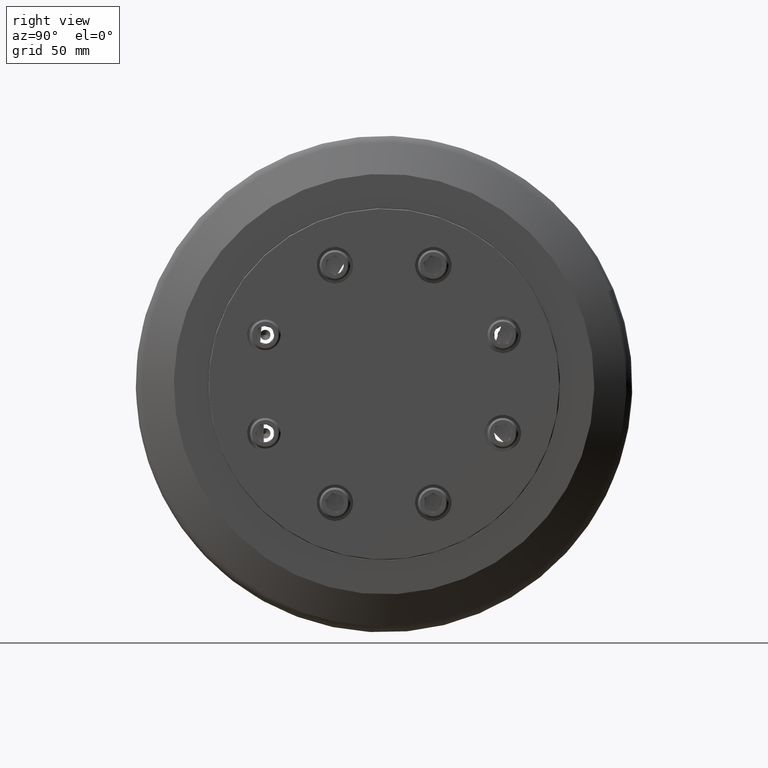
[diagram: clean part render]
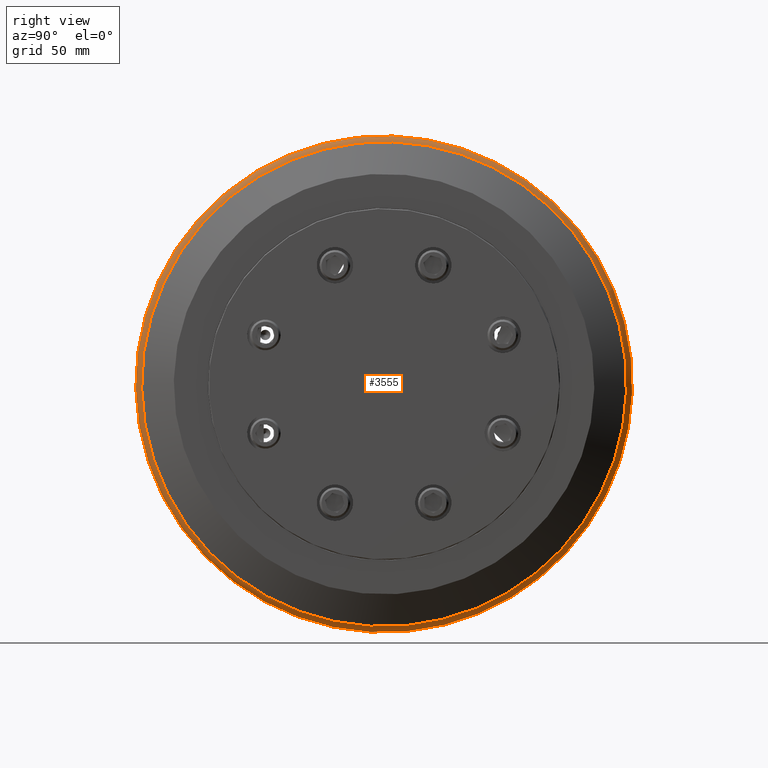
[diagram: same view with one face highlighted and labeled with its STEP entity id]
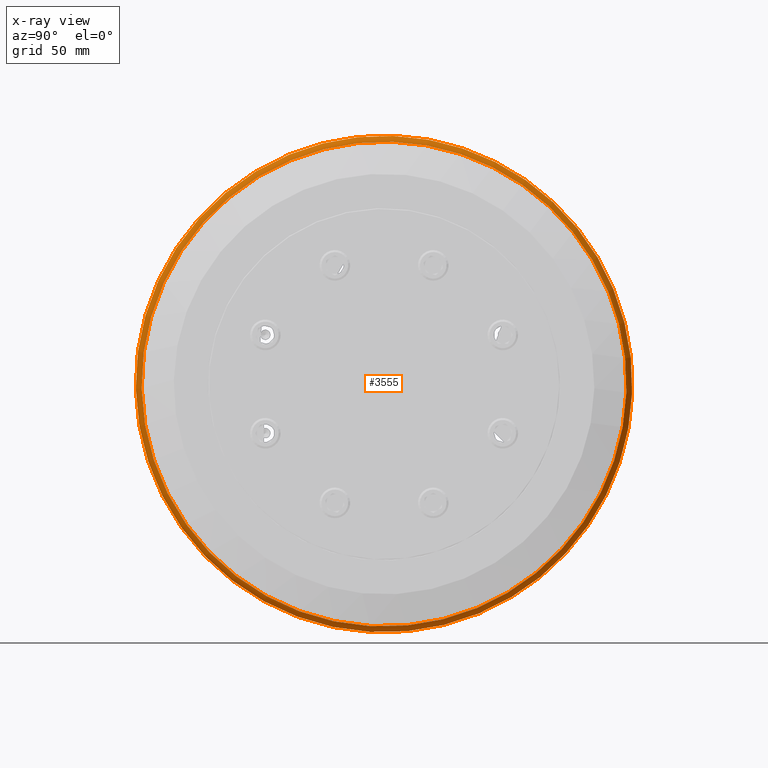
[diagram: x-ray of the same camera — body ghosted, the highlighted face saturated]
A machine part, right view. The second image highlights one B-rep face of the part: STEP entity #3555.
The next image is the same camera in x-ray: the body ghosted, the highlighted face saturated — about 0% of this face is hidden behind the body in this view.
In plain terms, the highlighted toroidal blend (fillet) surface has major radius 162 mm and minor (blend) radius 8 mm.
Its self-contained STEP definition (entity closure, byte-faithful):
#57=TOROIDAL_SURFACE('',#3875,162.,8.);
#208=CIRCLE('',#3876,166.);
#209=CIRCLE('',#3877,166.);
#210=CIRCLE('',#3878,8.);
#211=CIRCLE('',#3879,170.);
#212=CIRCLE('',#3880,170.);
#213=CIRCLE('',#3881,170.);
#214=CIRCLE('',#3882,166.);
#488=FACE_OUTER_BOUND('',#693,.T.);
#693=EDGE_LOOP('',(#2655,#2656,#2657,#2658,#2659,#2660,#2661,#2662));
#1458=VERTEX_POINT('',#5823);
#1459=VERTEX_POINT('',#5824);
#1460=VERTEX_POINT('',#5826);
#1461=VERTEX_POINT('',#5828);
#1462=VERTEX_POINT('',#5830);
#1463=VERTEX_POINT('',#5832);
#1903=EDGE_CURVE('',#1458,#1459,#208,.T.);
#1904=EDGE_CURVE('',#1459,#1460,#209,.T.);
#1905=EDGE_CURVE('',#1460,#1461,#210,.T.);
#1906=EDGE_CURVE('',#1461,#1462,#211,.T.);
#1907=EDGE_CURVE('',#1462,#1463,#212,.T.);
#1908=EDGE_CURVE('',#1463,#1461,#213,.T.);
#1909=EDGE_CURVE('',#1460,#1458,#214,.T.);
#2655=ORIENTED_EDGE('',*,*,#1903,.T.);
#2656=ORIENTED_EDGE('',*,*,#1904,.T.);
#2657=ORIENTED_EDGE('',*,*,#1905,.T.);
#2658=ORIENTED_EDGE('',*,*,#1906,.T.);
#2659=ORIENTED_EDGE('',*,*,#1907,.T.);
#2660=ORIENTED_EDGE('',*,*,#1908,.T.);
#2661=ORIENTED_EDGE('',*,*,#1905,.F.);
#2662=ORIENTED_EDGE('',*,*,#1909,.T.);
#3555=ADVANCED_FACE('',(#488),#57,.T.);
#3875=AXIS2_PLACEMENT_3D('',#5822,#4593,#4594);
#3876=AXIS2_PLACEMENT_3D('',#5825,#4595,#4596);
#3877=AXIS2_PLACEMENT_3D('',#5827,#4597,#4598);
#3878=AXIS2_PLACEMENT_3D('',#5829,#4599,#4600);
#3879=AXIS2_PLACEMENT_3D('',#5831,#4601,#4602);
#3880=AXIS2_PLACEMENT_3D('',#5833,#4603,#4604);
#3881=AXIS2_PLACEMENT_3D('',#5834,#4605,#4606);
#3882=AXIS2_PLACEMENT_3D('',#5835,#4607,#4608);
#4593=DIRECTION('center_axis',(1.,2.13376427274458E-16,1.38050658413677E-30));
#4594=DIRECTION('ref_axis',(1.97227854962822E-16,-0.923879532511287,-0.382683432365089));
#4595=DIRECTION('center_axis',(-1.,-1.81734031667709E-16,-7.63915006197908E-17));
#4596=DIRECTION('ref_axis',(-1.02994086430374E-18,-0.382683432365089,0.923879532511287));
#4597=DIRECTION('center_axis',(-1.,-1.81734031667709E-16,-7.63915006197908E-17));
#4598=DIRECTION('ref_axis',(-1.02994086430374E-18,-0.382683432365089,0.923879532511287));
#4599=DIRECTION('center_axis',(8.16556235751882E-17,-0.382683432365089,
0.923879532511287));
#4600=DIRECTION('ref_axis',(-1.97554391146535E-16,0.923879532511287,0.382683432365089));
#4601=DIRECTION('center_axis',(1.,2.13376427274458E-16,1.38050658413677E-30));
#4602=DIRECTION('ref_axis',(8.22957985459046E-17,-0.382683432365089,0.923879532511287));
#4603=DIRECTION('center_axis',(1.,2.13376427274458E-16,1.38050658413677E-30));
#4604=DIRECTION('ref_axis',(8.22957985459046E-17,-0.382683432365089,0.923879532511287));
#4605=DIRECTION('center_axis',(1.,2.13376427274458E-16,1.38050658413677E-30));
#4606=DIRECTION('ref_axis',(8.22957985459046E-17,-0.382683432365089,0.923879532511287));
#4607=DIRECTION('center_axis',(-1.,-1.81734031667709E-16,-7.63915006197908E-17));
#4608=DIRECTION('ref_axis',(-1.02994086430374E-18,-0.382683432365089,0.923879532511287));
#5822=CARTESIAN_POINT('Origin',(-1.37938505639501,-81.1601457435732,-29.650123282448));
#5823=CARTESIAN_POINT('',(5.54881817388051,-17.6346959709684,-183.014125679322));
#5824=CARTESIAN_POINT('',(5.54881817388049,-144.685595516178,123.713879114426));
#5825=CARTESIAN_POINT('Origin',(5.54881817388051,-81.1601457435732,-29.650123282448));
#5826=CARTESIAN_POINT('',(5.54881817388047,72.2038566533004,33.8753264901568));
#5827=CARTESIAN_POINT('Origin',(5.54881817388051,-81.1601457435732,-29.650123282448));
#5828=CARTESIAN_POINT('',(-1.37938505639504,75.8993747833456,35.4060602196172));
#5829=CARTESIAN_POINT('Origin',(-1.37938505639504,68.5083385232553,32.3445927606965));
#5830=CARTESIAN_POINT('',(-1.379385056395,-146.216329245638,127.409397244471));
#5831=CARTESIAN_POINT('Origin',(-1.37938505639501,-81.1601457435732,-29.650123282448));
#5832=CARTESIAN_POINT('',(-1.37938505639502,-16.103962241508,-186.709643809367));
#5833=CARTESIAN_POINT('Origin',(-1.37938505639501,-81.1601457435732,-29.650123282448));
#5834=CARTESIAN_POINT('Origin',(-1.37938505639501,-81.1601457435732,-29.650123282448));
#5835=CARTESIAN_POINT('Origin',(5.54881817388051,-81.1601457435732,-29.650123282448));